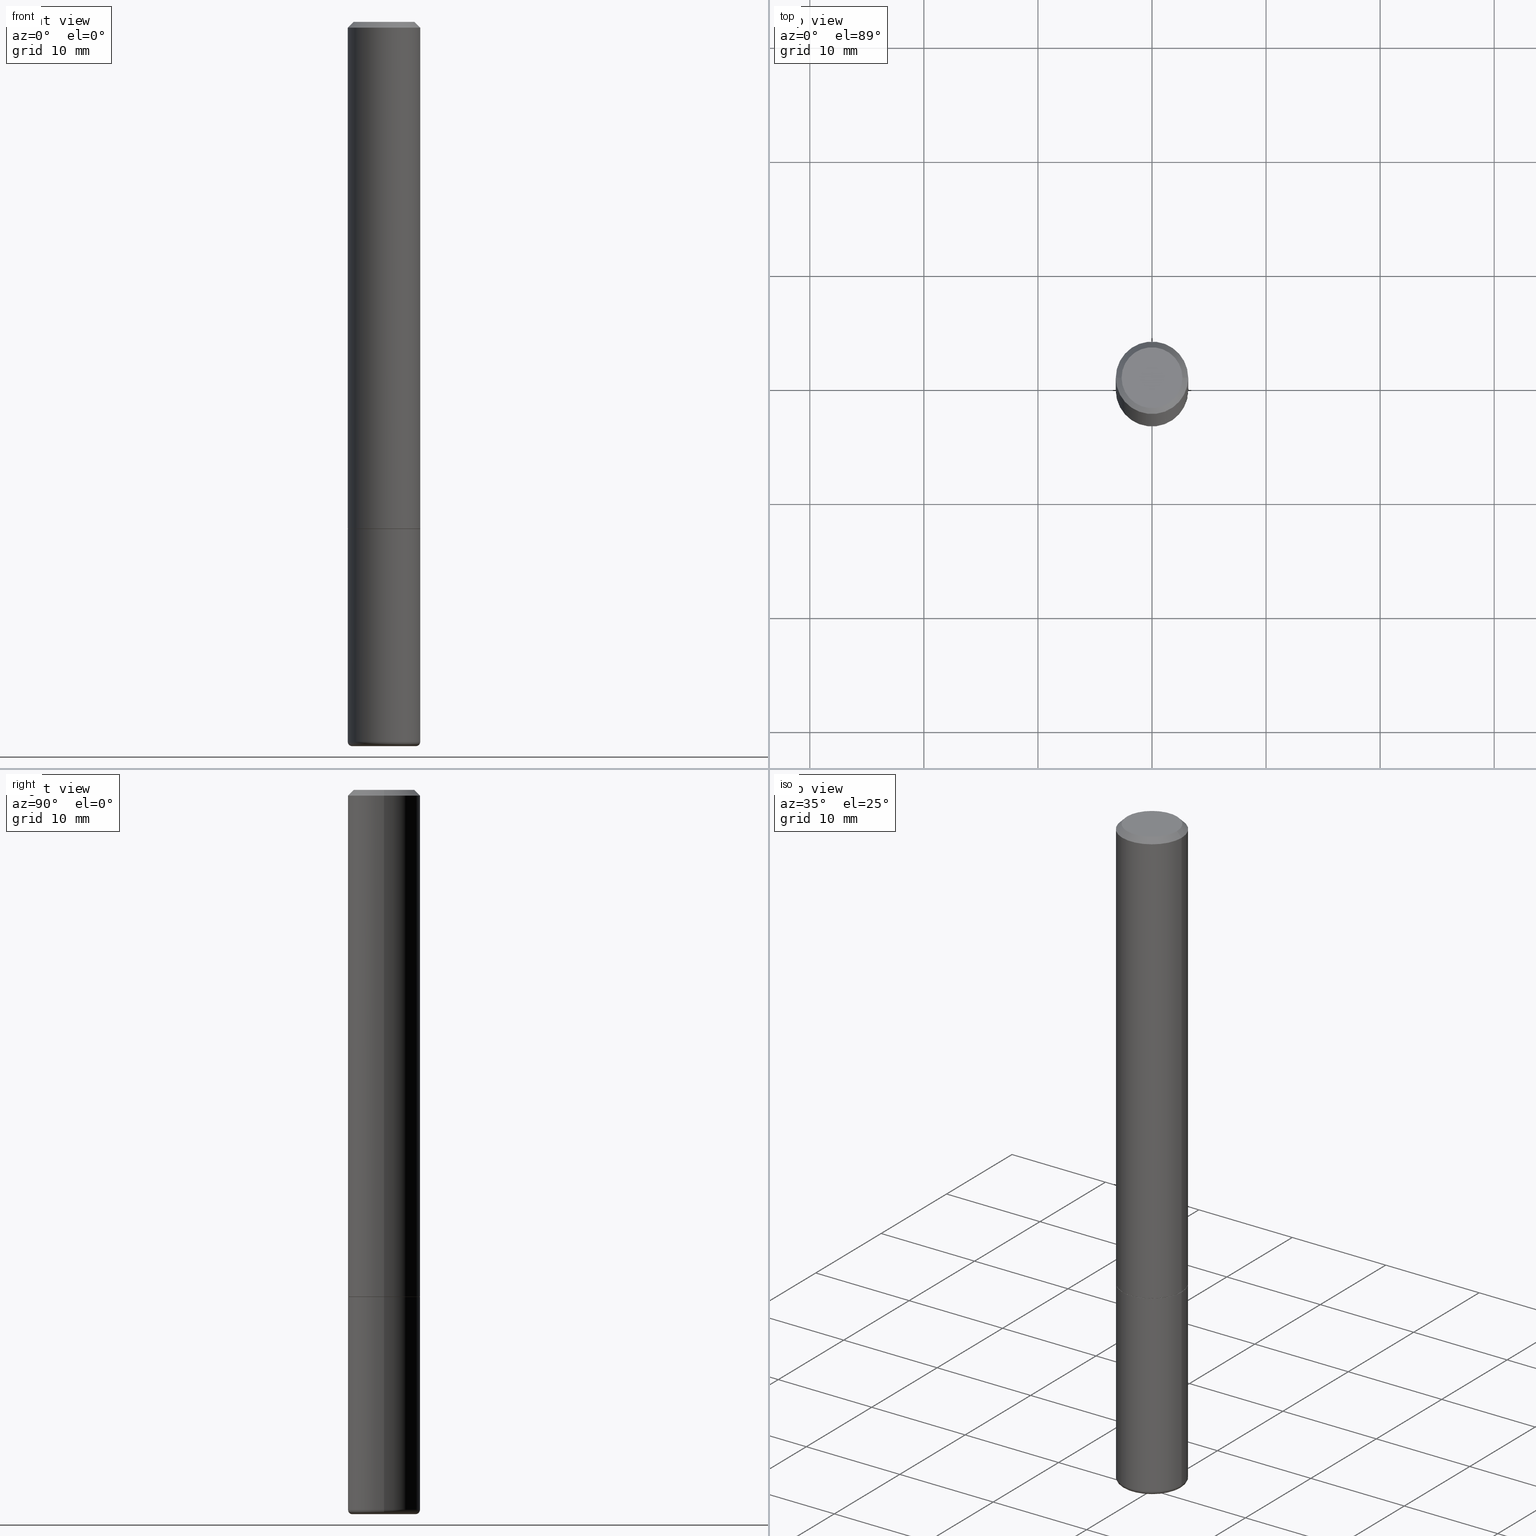
[diagram: canonical four-view strip — front | top / right | iso, engineering-drawing reading convention]
A machine part, canonical four-view strip (front | top / right | iso — engineering-drawing reading convention). The complete STEP part file that produces these views, byte-faithful:
ISO-10303-21;
HEADER;
FILE_DESCRIPTION (( 'STEP AP203' ),
    '1' );
FILE_NAME ('77116.STEP',
    '2024-03-06T16:01:43',
    ( '' ),
    ( '' ),
    'SwSTEP 2.0',
    'SolidWorks 2023',
    '' );
FILE_SCHEMA (( 'CONFIG_CONTROL_DESIGN' ));
ENDSEC;

DATA;
#1 = DIRECTION ( 'NONE',  ( -0.7071067811866863506, 7.493145998870855876E-15, 0.7071067811864086838 ) ) ;
#2 = CC_DESIGN_APPROVAL ( #26, ( #369 ) ) ;
#3 = CALENDAR_DATE ( 2024, 6, 3 ) ;
#4 = CARTESIAN_POINT ( 'NONE',  ( -0.1250000000000000555, -7.788152707325091448E-15, -2.484999999999999876 ) ) ;
#5 = DIRECTION ( 'NONE',  ( 2.445468806185136597E-29, -3.491481338843145583E-15, -1.000000000000000000 ) ) ;
#6 = FACE_OUTER_BOUND ( 'NONE', #62, .T. ) ;
#7 = DIRECTION ( 'NONE',  ( 0.7071067811866863506, -2.468850131083710931E-15, 0.7071067811864086838 ) ) ;
#8 = APPROVAL_DATE_TIME ( #326, #26 ) ;
#9 = DIRECTION ( 'NONE',  ( -2.445468806185136597E-29, 3.491481338843145583E-15, 1.000000000000000000 ) ) ;
#10 = ADVANCED_FACE ( 'NONE', ( #173 ), #311, .F. ) ;
#11 = CARTESIAN_POINT ( 'NONE',  ( -0.1250000000000000000, 8.881784197001252323E-16, -6.148668862818632227E-30 ) ) ;
#12 = AXIS2_PLACEMENT_3D ( 'NONE', #194, #35, #13 ) ;
#13 = DIRECTION ( 'NONE',  ( 1.000000000000000000, -6.982962677686270655E-15, 0.000000000000000000 ) ) ;
#14 = PRODUCT_RELATED_PRODUCT_CATEGORY ( 'detail', '', ( #378 ) ) ;
#15 = LINE ( 'NONE', #407, #120 ) ;
#16 = CARTESIAN_POINT ( 'NONE',  ( 0.1100000000000000006, -9.444457021570706649E-15, -2.484999999999999876 ) ) ;
#17 = ORIENTED_EDGE ( 'NONE', *, *, #334, .F. ) ;
#18 = DIRECTION ( 'NONE',  ( -2.445468806185136597E-29, 3.491481338843145583E-15, 1.000000000000000000 ) ) ;
#19 = CARTESIAN_POINT ( 'NONE',  ( 0.1239999999999999991, -6.975979715008601207E-15, -1.750000000000000000 ) ) ;
#20 = ORIENTED_EDGE ( 'NONE', *, *, #178, .T. ) ;
#21 = VECTOR ( 'NONE', #131, 39.37007874015748143 ) ;
#22 = EDGE_CURVE ( 'NONE', #279, #90, #228, .T. ) ;
#23 = VERTEX_POINT ( 'NONE', #51 ) ;
#24 = ORIENTED_EDGE ( 'NONE', *, *, #52, .F. ) ;
#25 = ORIENTED_EDGE ( 'NONE', *, *, #373, .T. ) ;
#26 = APPROVAL ( #364, 'UNSPECIFIED' ) ;
#27 = TOROIDAL_SURFACE ( 'NONE', #154, 0.1100000000000000006, 0.01500000000000012088 ) ;
#28 = AXIS2_PLACEMENT_3D ( 'NONE', #77, #191, #132 ) ;
#29 = DIRECTION ( 'NONE',  ( 1.000000000000000000, -6.982962677686266711E-15, 4.876176775795935793E-29 ) ) ;
#30 = ORIENTED_EDGE ( 'NONE', *, *, #351, .F. ) ;
#31 = EDGE_CURVE ( 'NONE', #23, #418, #42, .T. ) ;
#32 = SECURITY_CLASSIFICATION_LEVEL ( 'unclassified' ) ;
#33 = CARTESIAN_POINT ( 'NONE',  ( 4.279570410823988484E-29, -6.110092342975504671E-15, -1.750000000000000000 ) ) ;
#34 = CC_DESIGN_PERSON_AND_ORGANIZATION_ASSIGNMENT ( #246, #293, ( #369 ) ) ;
#35 = DIRECTION ( 'NONE',  ( -2.445468806185136597E-29, 3.491481338843145583E-15, 1.000000000000000000 ) ) ;
#36 = CONICAL_SURFACE ( 'NONE', #181, 0.1239999999999999991, 0.7853981633976446775 ) ;
#37 = DIRECTION ( 'NONE',  ( -2.445468806185136597E-29, 3.491481338843145583E-15, 1.000000000000000000 ) ) ;
#38 = PERSON_AND_ORGANIZATION_ROLE ( 'classification_officer' ) ;
#39 = CARTESIAN_POINT ( 'NONE',  ( 0.000000000000000000, 0.000000000000000000, 0.000000000000000000 ) ) ;
#40 = CARTESIAN_POINT ( 'NONE',  ( 1.252621697202263706E-45, -1.788411804456536750E-31, -5.122214988120493535E-17 ) ) ;
#41 = CARTESIAN_POINT ( 'NONE',  ( 4.279570410823989044E-29, -6.110092342975505460E-15, -1.750000000000000222 ) ) ;
#42 = CIRCLE ( 'NONE', #381, 0.1250000000000001943 ) ;
#43 = CIRCLE ( 'NONE', #221, 0.01500000000000012955 ) ;
#44 = DIRECTION ( 'NONE',  ( 1.000000000000000000, -6.982962677686270655E-15, 0.000000000000000000 ) ) ;
#45 = DIRECTION ( 'NONE',  ( -2.445468806185136597E-29, 3.491481338843145583E-15, 1.000000000000000000 ) ) ;
#46 = CC_DESIGN_DATE_AND_TIME_ASSIGNMENT ( #254, #220, ( #417 ) ) ;
#47 = CARTESIAN_POINT ( 'NONE',  ( 0.1250000000000000000, -6.982962677686288010E-15, -1.750000000000000222 ) ) ;
#48 = CIRCLE ( 'NONE', #270, 0.1050000000000000377 ) ;
#49 = APPROVAL_ROLE ( '' ) ;
#50 = FACE_OUTER_BOUND ( 'NONE', #148, .T. ) ;
#51 = CARTESIAN_POINT ( 'NONE',  ( -0.1250000000000001943, -2.200036824506633304E-15, -1.749000000000000110 ) ) ;
#52 = EDGE_CURVE ( 'NONE', #376, #280, #15, .T. ) ;
#53 = ORIENTED_EDGE ( 'NONE', *, *, #306, .F. ) ;
#54 = ORIENTED_EDGE ( 'NONE', *, *, #238, .T. ) ;
#55 = VERTEX_POINT ( 'NONE', #47 ) ;
#56 = CIRCLE ( 'NONE', #81, 0.1249999999999999584 ) ;
#57 = CARTESIAN_POINT ( 'NONE',  ( 0.1250000000000000555, -9.549201461736000019E-15, -2.484999999999999876 ) ) ;
#58 = ORIENTED_EDGE ( 'NONE', *, *, #333, .T. ) ;
#59 = ADVANCED_FACE ( 'NONE', ( #84 ), #27, .T. ) ;
#60 = EDGE_LOOP ( 'NONE', ( #24, #349, #237, #25 ) ) ;
#61 = DIRECTION ( 'NONE',  ( 1.000000000000000000, 0.000000000000000000, 0.000000000000000000 ) ) ;
#62 = EDGE_LOOP ( 'NONE', ( #347, #232 ) ) ;
#63 = AXIS2_PLACEMENT_3D ( 'NONE', #40, #99, #283 ) ;
#64 = EDGE_CURVE ( 'NONE', #239, #276, #69, .T. ) ;
#65 = DATE_TIME_ROLE ( 'classification_date' ) ;
#66 = CARTESIAN_POINT ( 'NONE',  ( 0.000000000000000000, 0.000000000000000000, 0.000000000000000000 ) ) ;
#67 = APPROVAL_DATE_TIME ( #319, #340 ) ;
#68 = DIRECTION ( 'NONE',  ( 1.000000000000000000, -6.982962677686267499E-15, 4.876176775795936353E-29 ) ) ;
#69 = CIRCLE ( 'NONE', #141, 0.1239999999999999991 ) ;
#70 = AXIS2_PLACEMENT_3D ( 'NONE', #233, #236, #61 ) ;
#71 = COORDINATED_UNIVERSAL_TIME_OFFSET ( 5, 0, .BEHIND. ) ;
#72 = CARTESIAN_POINT ( 'NONE',  ( 4.279570410823988484E-29, -6.110092342975504671E-15, -1.750000000000000000 ) ) ;
#73 = DIRECTION ( 'NONE',  ( 7.105427357601001859E-15, 1.000000000000000000, -3.491481338843145583E-15 ) ) ;
#74 = EDGE_CURVE ( 'NONE', #376, #275, #85, .T. ) ;
#75 = ADVANCED_FACE ( 'NONE', ( #258 ), #36, .T. ) ;
#76 = PERSON_AND_ORGANIZATION ( #303, #121 ) ;
#77 = CARTESIAN_POINT ( 'NONE',  ( 7.332110811570581229E-16, 0.1050000000000000377, -3.922166155191328542E-16 ) ) ;
#78 = DIRECTION ( 'NONE',  ( -1.000000000000000000, 7.105427357600994759E-15, 0.000000000000000000 ) ) ;
#79 = DIRECTION ( 'NONE',  ( 1.000000000000000000, -6.982962677686262766E-15, 4.883557194083111780E-29 ) ) ;
#80 = VECTOR ( 'NONE', #1, 39.37007874015748143 ) ;
#81 = AXIS2_PLACEMENT_3D ( 'NONE', #260, #400, #108 ) ;
#82 = EDGE_CURVE ( 'NONE', #239, #23, #356, .T. ) ;
#83 = DIRECTION ( 'NONE',  ( -2.445468806185136597E-29, 3.491481338843145583E-15, 1.000000000000000000 ) ) ;
#84 = FACE_OUTER_BOUND ( 'NONE', #415, .T. ) ;
#85 = CIRCLE ( 'NONE', #63, 0.1050000000000000377 ) ;
#86 = LOCAL_TIME ( 11, 1, 43.00000000000000000, #396 ) ;
#87 = EDGE_CURVE ( 'NONE', #377, #210, #134, .T. ) ;
#88 = CC_DESIGN_PERSON_AND_ORGANIZATION_ASSIGNMENT ( #268, #180, ( #417 ) ) ;
#89 = ORIENTED_EDGE ( 'NONE', *, *, #259, .T. ) ;
#90 = VERTEX_POINT ( 'NONE', #4 ) ;
#91 = AXIS2_PLACEMENT_3D ( 'NONE', #371, #336, #269 ) ;
#92 = ORIENTED_EDGE ( 'NONE', *, *, #163, .F. ) ;
#93 = EDGE_LOOP ( 'NONE', ( #331, #147, #384, #30 ) ) ;
#94 = DIRECTION ( 'NONE',  ( -1.000000000000000000, 6.982962677686265922E-15, -4.876176775795935793E-29 ) ) ;
#95 = ORIENTED_EDGE ( 'NONE', *, *, #139, .T. ) ;
#96 = LOCAL_TIME ( 11, 1, 43.00000000000000000, #106 ) ;
#97 = DIRECTION ( 'NONE',  ( -1.000000000000000000, 6.982962677686265922E-15, -4.876176775795935793E-29 ) ) ;
#98 = MECHANICAL_CONTEXT ( 'NONE', #253, 'mechanical' ) ;
#99 = DIRECTION ( 'NONE',  ( -2.445468806185136597E-29, 3.491481338843145583E-15, 1.000000000000000000 ) ) ;
#100 = CARTESIAN_POINT ( 'NONE',  ( 0.1239999999999999991, -6.975979715008601207E-15, -1.750000000000000000 ) ) ;
#101 = CYLINDRICAL_SURFACE ( 'NONE', #374, 0.1250000000000000000 ) ;
#102 =( NAMED_UNIT ( * ) SI_UNIT ( $, .STERADIAN. ) SOLID_ANGLE_UNIT ( ) );
#103 = AXIS2_PLACEMENT_3D ( 'NONE', #72, #248, #359 ) ;
#104 = DIRECTION ( 'NONE',  ( -6.982962677686266711E-15, -1.000000000000000000, 3.491481338843145583E-15 ) ) ;
#105 = PERSON_AND_ORGANIZATION ( #303, #121 ) ;
#106 = COORDINATED_UNIVERSAL_TIME_OFFSET ( 5, 0, .BEHIND. ) ;
#107 = FACE_OUTER_BOUND ( 'NONE', #353, .T. ) ;
#108 = DIRECTION ( 'NONE',  ( 1.000000000000000000, -6.982962677686267499E-15, 0.000000000000000000 ) ) ;
#109 = CARTESIAN_POINT ( 'NONE',  ( 6.076989983370064174E-29, -8.676331127025216680E-15, -2.484999999999999876 ) ) ;
#110 = FACE_OUTER_BOUND ( 'NONE', #313, .T. ) ;
#111 = VECTOR ( 'NONE', #190, 39.37007874015748143 ) ;
#112 = DIRECTION ( 'NONE',  ( 1.000000000000000000, -6.982962677686267499E-15, 0.000000000000000000 ) ) ;
#113 = APPLICATION_PROTOCOL_DEFINITION ( 'international standard', 'config_control_design', 1994, #253 ) ;
#114 = PERSON_AND_ORGANIZATION ( #303, #121 ) ;
#115 = ORIENTED_EDGE ( 'NONE', *, *, #31, .T. ) ;
#116 = ORIENTED_EDGE ( 'NONE', *, *, #406, .T. ) ;
#117 = VECTOR ( 'NONE', #7, 39.37007874015748143 ) ;
#118 = ORIENTED_EDGE ( 'NONE', *, *, #386, .F. ) ;
#119 = CARTESIAN_POINT ( 'NONE',  ( 0.1250000000000001943, -6.979471196347446580E-15, -1.749000000000000110 ) ) ;
#120 = VECTOR ( 'NONE', #199, 39.37007874015748143 ) ;
#121 = ORGANIZATION ( 'UNSPECIFIED', 'UNSPECIFIED', '' ) ;
#122 = DIRECTION ( 'NONE',  ( 2.438088387897960049E-29, -3.491481338843145188E-15, -1.000000000000000000 ) ) ;
#123 = AXIS2_PLACEMENT_3D ( 'NONE', #389, #5, #370 ) ;
#124 = DIRECTION ( 'NONE',  ( 1.000000000000000000, -6.982962677686262766E-15, 0.000000000000000000 ) ) ;
#125 = LINE ( 'NONE', #252, #257 ) ;
#126 = CALENDAR_DATE ( 2024, 6, 3 ) ;
#127 = DIRECTION ( 'NONE',  ( 1.000000000000000000, -6.982962677686266711E-15, 4.876176775795935793E-29 ) ) ;
#128 = DIRECTION ( 'NONE',  ( 1.000000000000000000, -6.982962677686267499E-15, 4.874400871621236533E-29 ) ) ;
#129 = AXIS2_PLACEMENT_3D ( 'NONE', #66, #320, #68 ) ;
#130 = VECTOR ( 'NONE', #227, 39.37007874015748143 ) ;
#131 = DIRECTION ( 'NONE',  ( -2.445468806185136877E-29, 3.491481338843145188E-15, 1.000000000000000000 ) ) ;
#132 = DIRECTION ( 'NONE',  ( -1.000000000000000000, 6.982962677686265922E-15, -4.876176775795935793E-29 ) ) ;
#133 = ADVANCED_FACE ( 'NONE', ( #110 ), #101, .T. ) ;
#134 = CIRCLE ( 'NONE', #263, 0.1100000000000000006 ) ;
#135 = DIRECTION ( 'NONE',  ( 1.000000000000000000, -6.982962677686267499E-15, 0.000000000000000000 ) ) ;
#136 = AXIS2_PLACEMENT_3D ( 'NONE', #231, #277, #29 ) ;
#137 = ORIENTED_EDGE ( 'NONE', *, *, #333, .F. ) ;
#138 = APPROVAL_DATE_TIME ( #267, #182 ) ;
#139 = EDGE_CURVE ( 'NONE', #275, #376, #48, .T. ) ;
#140 = CARTESIAN_POINT ( 'NONE',  ( 4.277124942017804562E-29, -6.106600861636661664E-15, -1.749000000000000110 ) ) ;
#141 = AXIS2_PLACEMENT_3D ( 'NONE', #33, #37, #392 ) ;
#142 = ORIENTED_EDGE ( 'NONE', *, *, #339, .F. ) ;
#143 = APPROVAL_PERSON_ORGANIZATION ( #114, #182, #49 ) ;
#144 = ORIENTED_EDGE ( 'NONE', *, *, #281, .F. ) ;
#145 = ORIENTED_EDGE ( 'NONE', *, *, #306, .T. ) ;
#146 = ADVANCED_BREP_SHAPE_REPRESENTATION ( '77116', ( #416, #264, #70 ), #297 ) ;
#147 = ORIENTED_EDGE ( 'NONE', *, *, #52, .T. ) ;
#148 = EDGE_LOOP ( 'NONE', ( #214, #272, #54, #172 ) ) ;
#149 = AXIS2_PLACEMENT_3D ( 'NONE', #171, #169, #201 ) ;
#150 = ORIENTED_EDGE ( 'NONE', *, *, #163, .T. ) ;
#151 = ADVANCED_FACE ( 'NONE', ( #6 ), #162, .T. ) ;
#152 = COORDINATED_UNIVERSAL_TIME_OFFSET ( 5, 0, .BEHIND. ) ;
#153 = CARTESIAN_POINT ( 'NONE',  ( -0.1239999999999999991, -5.229019350632980447E-15, -1.750000000000000000 ) ) ;
#154 = AXIS2_PLACEMENT_3D ( 'NONE', #185, #9, #79 ) ;
#155 = FACE_OUTER_BOUND ( 'NONE', #372, .T. ) ;
#156 = DIRECTION ( 'NONE',  ( 2.445468806185136597E-29, -3.491481338843145583E-15, -1.000000000000000000 ) ) ;
#157 = UNCERTAINTY_MEASURE_WITH_UNIT (LENGTH_MEASURE( 1.000000000000000082E-05 ), #292, 'distance_accuracy_value', 'NONE');
#158 = LINE ( 'NONE', #251, #360 ) ;
#159 = DIRECTION ( 'NONE',  ( 1.000000000000000000, -6.982962677686262766E-15, 4.883557194083111780E-29 ) ) ;
#160 = DIRECTION ( 'NONE',  ( -2.445468806185136597E-29, 3.491481338843145583E-15, 1.000000000000000000 ) ) ;
#161 = DIRECTION ( 'NONE',  ( -2.445468806185136597E-29, 3.491481338843145583E-15, 1.000000000000000000 ) ) ;
#162 = PLANE ( 'NONE',  #245 ) ;
#163 = EDGE_CURVE ( 'NONE', #276, #239, #302, .T. ) ;
#164 = LOCAL_TIME ( 11, 1, 43.00000000000000000, #71 ) ;
#165 = DIRECTION ( 'NONE',  ( -2.445468806185136597E-29, 3.491481338843145583E-15, 1.000000000000000000 ) ) ;
#166 = FACE_OUTER_BOUND ( 'NONE', #60, .T. ) ;
#167 = CARTESIAN_POINT ( 'NONE',  ( 4.890937612370288923E-31, -6.982962677686312563E-17, -0.02000000000000006287 ) ) ;
#168 = FACE_OUTER_BOUND ( 'NONE', #183, .T. ) ;
#169 = DIRECTION ( 'NONE',  ( -2.445468806185136597E-29, 3.491481338843145583E-15, 1.000000000000000000 ) ) ;
#170 = AXIS2_PLACEMENT_3D ( 'NONE', #167, #83, #135 ) ;
#171 = CARTESIAN_POINT ( 'NONE',  ( 6.076989983370064174E-29, -8.676331127025216680E-15, -2.484999999999999876 ) ) ;
#172 = ORIENTED_EDGE ( 'NONE', *, *, #250, .F. ) ;
#173 = FACE_OUTER_BOUND ( 'NONE', #388, .T. ) ;
#174 = ADVANCED_FACE ( 'NONE', ( #362 ), #216, .T. ) ;
#175 = ORIENTED_EDGE ( 'NONE', *, *, #64, .T. ) ;
#176 = ORIENTED_EDGE ( 'NONE', *, *, #386, .T. ) ;
#177 = LINE ( 'NONE', #100, #117 ) ;
#178 = EDGE_CURVE ( 'NONE', #210, #377, #256, .T. ) ;
#179 = EDGE_LOOP ( 'NONE', ( #89, #341, #17, #118 ) ) ;
#180 = PERSON_AND_ORGANIZATION_ROLE ( 'creator' ) ;
#181 = AXIS2_PLACEMENT_3D ( 'NONE', #255, #328, #401 ) ;
#182 = APPROVAL ( #314, 'UNSPECIFIED' ) ;
#183 = EDGE_LOOP ( 'NONE', ( #380, #58, #413, #142 ) ) ;
#184 = APPROVAL_STATUS ( 'not_yet_approved' ) ;
#185 = CARTESIAN_POINT ( 'NONE',  ( 6.076989983370064174E-29, -8.676331127025216680E-15, -2.484999999999999876 ) ) ;
#186 = CIRCLE ( 'NONE', #170, 0.1249999999999999584 ) ;
#187 = CARTESIAN_POINT ( 'NONE',  ( -0.1100000000000000006, -7.867629522548422746E-15, -2.500000000000000000 ) ) ;
#188 = CALENDAR_DATE ( 2024, 6, 3 ) ;
#189 = DIRECTION ( 'NONE',  ( -2.445468806185136597E-29, 3.491481338843145583E-15, 1.000000000000000000 ) ) ;
#190 = DIRECTION ( 'NONE',  ( -0.7071067811865459074, 2.468850131082240100E-15, -0.7071067811865491270 ) ) ;
#191 = DIRECTION ( 'NONE',  ( 2.438088387897960049E-29, -3.491481338843145188E-15, -1.000000000000000000 ) ) ;
#192 = DIMENSIONAL_EXPONENTS ( 1.000000000000000000, 0.000000000000000000, 0.000000000000000000, 0.000000000000000000, 0.000000000000000000, 0.000000000000000000, 0.000000000000000000 ) ;
#193 = DIRECTION ( 'NONE',  ( 1.000000000000000000, -6.982962677686265922E-15, 4.876176775795935793E-29 ) ) ;
#194 = CARTESIAN_POINT ( 'NONE',  ( 6.113672015462842613E-29, -8.728703347107864943E-15, -2.500000000000000000 ) ) ;
#195 = SECURITY_CLASSIFICATION ( '', '', #32 ) ;
#196 = ORIENTED_EDGE ( 'NONE', *, *, #238, .F. ) ;
#197 = CARTESIAN_POINT ( 'NONE',  ( 4.890937612370288923E-31, -6.982962677686312563E-17, -0.02000000000000006287 ) ) ;
#198 = CARTESIAN_POINT ( 'NONE',  ( 4.277124942017804562E-29, -6.106600861636661664E-15, -1.749000000000000110 ) ) ;
#199 = DIRECTION ( 'NONE',  ( 0.7071067811865459074, -7.319954787623249734E-15, -0.7071067811865491270 ) ) ;
#200 = CLOSED_SHELL ( 'NONE', ( #133, #346, #286, #285, #59, #151 ) ) ;
#201 = DIRECTION ( 'NONE',  ( 1.000000000000000000, -6.982962677686270655E-15, 0.000000000000000000 ) ) ;
#202 = CIRCLE ( 'NONE', #322, 0.1250000000000001943 ) ;
#203 = ADVANCED_FACE ( 'NONE', ( #155 ), #241, .T. ) ;
#204 = DIRECTION ( 'NONE',  ( -2.445468806185136597E-29, 3.491481338843145583E-15, 1.000000000000000000 ) ) ;
#205 = ORIENTED_EDGE ( 'NONE', *, *, #82, .F. ) ;
#206 = EDGE_CURVE ( 'NONE', #23, #273, #158, .T. ) ;
#207 = CARTESIAN_POINT ( 'NONE',  ( -0.1050000000000000377, 7.681258945454890818E-16, -5.122214988121018004E-17 ) ) ;
#208 = CIRCLE ( 'NONE', #397, 0.01500000000000012955 ) ;
#209 = ORIENTED_EDGE ( 'NONE', *, *, #22, .T. ) ;
#210 = VERTEX_POINT ( 'NONE', #187 ) ;
#211 = APPLICATION_PROTOCOL_DEFINITION ( 'international standard', 'config_control_design', 1994, #301 ) ;
#212 = DIRECTION ( 'NONE',  ( -1.000000000000000000, 6.982962677686267499E-15, 0.000000000000000000 ) ) ;
#213 = FACE_OUTER_BOUND ( 'NONE', #411, .T. ) ;
#214 = ORIENTED_EDGE ( 'NONE', *, *, #354, .F. ) ;
#215 = CIRCLE ( 'NONE', #149, 0.1250000000000000000 ) ;
#216 = CYLINDRICAL_SURFACE ( 'NONE', #129, 0.1250000000000000555 ) ;
#217 = ADVANCED_FACE ( 'NONE', ( #226 ), #399, .T. ) ;
#218 = CARTESIAN_POINT ( 'NONE',  ( 6.113672015462842613E-29, -8.728703347107864943E-15, -2.500000000000000000 ) ) ;
#219 =( LENGTH_UNIT ( ) NAMED_UNIT ( * ) SI_UNIT ( $, .METRE. ) );
#220 = DATE_TIME_ROLE ( 'creation_date' ) ;
#221 = AXIS2_PLACEMENT_3D ( 'NONE', #16, #104, #335 ) ;
#222 = DIRECTION ( 'NONE',  ( -2.445468806185136597E-29, 3.491481338843145583E-15, 1.000000000000000000 ) ) ;
#223 = APPROVAL_ROLE ( '' ) ;
#224 = DIRECTION ( 'NONE',  ( 1.000000000000000000, -6.982962677686270655E-15, 0.000000000000000000 ) ) ;
#225 = CARTESIAN_POINT ( 'NONE',  ( 0.1050000000000000377, -8.238720831321576644E-16, -5.122214988119949344E-17 ) ) ;
#226 = FACE_OUTER_BOUND ( 'NONE', #244, .T. ) ;
#227 = DIRECTION ( 'NONE',  ( -2.445468806185136877E-29, 3.491481338843145188E-15, 1.000000000000000000 ) ) ;
#228 = CIRCLE ( 'NONE', #240, 0.1250000000000000000 ) ;
#229 = CONICAL_SURFACE ( 'NONE', #123, 0.1249999999999999584, 0.7853981633974460586 ) ;
#230 = DIRECTION ( 'NONE',  ( -2.438088387897960049E-29, 3.491481338843145188E-15, 1.000000000000000000 ) ) ;
#231 = CARTESIAN_POINT ( 'NONE',  ( 0.000000000000000000, 0.000000000000000000, 0.000000000000000000 ) ) ;
#232 = ORIENTED_EDGE ( 'NONE', *, *, #178, .F. ) ;
#233 = CARTESIAN_POINT ( 'NONE',  ( 0.000000000000000000, 0.000000000000000000, 0.000000000000000000 ) ) ;
#234 = ADVANCED_FACE ( 'NONE', ( #107 ), #366, .F. ) ;
#235 = COORDINATED_UNIVERSAL_TIME_OFFSET ( 5, 0, .BEHIND. ) ;
#236 = DIRECTION ( 'NONE',  ( 0.000000000000000000, 0.000000000000000000, 1.000000000000000000 ) ) ;
#237 = ORIENTED_EDGE ( 'NONE', *, *, #351, .T. ) ;
#238 = EDGE_CURVE ( 'NONE', #279, #55, #261, .T. ) ;
#239 = VERTEX_POINT ( 'NONE', #332 ) ;
#240 = AXIS2_PLACEMENT_3D ( 'NONE', #109, #18, #44 ) ;
#241 = CONICAL_SURFACE ( 'NONE', #247, 0.1239999999999999991, 0.7853981633976446775 ) ;
#242 = ORIENTED_EDGE ( 'NONE', *, *, #74, .T. ) ;
#243 = ORIENTED_EDGE ( 'NONE', *, *, #250, .T. ) ;
#244 = EDGE_LOOP ( 'NONE', ( #350, #115, #176, #315 ) ) ;
#245 = AXIS2_PLACEMENT_3D ( 'NONE', #218, #122, #97 ) ;
#246 = PERSON_AND_ORGANIZATION ( #303, #121 ) ;
#247 = AXIS2_PLACEMENT_3D ( 'NONE', #289, #160, #124 ) ;
#248 = DIRECTION ( 'NONE',  ( -2.445468806185136597E-29, 3.491481338843145583E-15, 1.000000000000000000 ) ) ;
#249 = DIRECTION ( 'NONE',  ( 2.438088387897960049E-29, -3.491481338843145188E-15, -1.000000000000000000 ) ) ;
#250 = EDGE_CURVE ( 'NONE', #387, #55, #337, .T. ) ;
#251 = CARTESIAN_POINT ( 'NONE',  ( -0.1250000000000000555, 8.881784197001256268E-16, -6.148668862818635730E-30 ) ) ;
#252 = CARTESIAN_POINT ( 'NONE',  ( 0.1250000000000000555, -8.728703347107838319E-16, 6.095220969744923244E-30 ) ) ;
#253 = APPLICATION_CONTEXT ( 'configuration controlled 3d designs of mechanical parts and assemblies' ) ;
#254 = DATE_AND_TIME ( #126, #86 ) ;
#255 = CARTESIAN_POINT ( 'NONE',  ( 4.279570410823988484E-29, -6.110092342975504671E-15, -1.750000000000000000 ) ) ;
#256 = CIRCLE ( 'NONE', #12, 0.1100000000000000006 ) ;
#257 = VECTOR ( 'NONE', #325, 39.37007874015748143 ) ;
#258 = FACE_OUTER_BOUND ( 'NONE', #318, .T. ) ;
#259 = EDGE_CURVE ( 'NONE', #418, #23, #202, .T. ) ;
#260 = CARTESIAN_POINT ( 'NONE',  ( 4.890937612370288923E-31, -6.982962677686312563E-17, -0.02000000000000006287 ) ) ;
#261 = LINE ( 'NONE', #262, #130 ) ;
#262 = CARTESIAN_POINT ( 'NONE',  ( 0.1250000000000000000, -8.728703347107833388E-16, 6.095220969744919741E-30 ) ) ;
#263 = AXIS2_PLACEMENT_3D ( 'NONE', #395, #189, #224 ) ;
#264 = MANIFOLD_SOLID_BREP ( 'Body-Move/Copy2[2]', #287 ) ;
#265 = LINE ( 'NONE', #363, #111 ) ;
#266 = ORIENTED_EDGE ( 'NONE', *, *, #354, .T. ) ;
#267 = DATE_AND_TIME ( #342, #307 ) ;
#268 = PERSON_AND_ORGANIZATION ( #303, #121 ) ;
#269 = DIRECTION ( 'NONE',  ( 1.000000000000000000, -6.982962677686262766E-15, 0.000000000000000000 ) ) ;
#270 = AXIS2_PLACEMENT_3D ( 'NONE', #391, #298, #128 ) ;
#271 = APPROVAL_PERSON_ORGANIZATION ( #105, #26, #223 ) ;
#272 = ORIENTED_EDGE ( 'NONE', *, *, #281, .T. ) ;
#273 = VERTEX_POINT ( 'NONE', #343 ) ;
#274 = CARTESIAN_POINT ( 'NONE',  ( 4.279570410823989044E-29, -6.110092342975505460E-15, -1.750000000000000222 ) ) ;
#275 = VERTEX_POINT ( 'NONE', #207 ) ;
#276 = VERTEX_POINT ( 'NONE', #19 ) ;
#277 = DIRECTION ( 'NONE',  ( -2.445468806185136597E-29, 3.491481338843145583E-15, 1.000000000000000000 ) ) ;
#278 = CC_DESIGN_SECURITY_CLASSIFICATION ( #195, ( #369 ) ) ;
#279 = VERTEX_POINT ( 'NONE', #57 ) ;
#280 = VERTEX_POINT ( 'NONE', #412 ) ;
#281 = EDGE_CURVE ( 'NONE', #90, #279, #215, .T. ) ;
#282 = DATE_AND_TIME ( #3, #352 ) ;
#283 = DIRECTION ( 'NONE',  ( 1.000000000000000000, -6.982962677686267499E-15, 4.874400871621236533E-29 ) ) ;
#284 = CARTESIAN_POINT ( 'NONE',  ( 4.279570410823989044E-29, -6.110092342975505460E-15, -1.750000000000000222 ) ) ;
#285 = ADVANCED_FACE ( 'NONE', ( #50 ), #304, .T. ) ;
#286 = ADVANCED_FACE ( 'NONE', ( #213 ), #357, .F. ) ;
#287 = CLOSED_SHELL ( 'NONE', ( #203, #174, #295, #379, #217, #75, #10, #234 ) ) ;
#288 = TOROIDAL_SURFACE ( 'NONE', #403, 0.1100000000000000006, 0.01500000000000012088 ) ;
#289 = CARTESIAN_POINT ( 'NONE',  ( 4.279570410823988484E-29, -6.110092342975504671E-15, -1.750000000000000000 ) ) ;
#290 = SHAPE_DEFINITION_REPRESENTATION ( #308, #146 ) ;
#291 = DIRECTION ( 'NONE',  ( 1.000000000000000000, -6.982962677686267499E-15, 4.876176775795936353E-29 ) ) ;
#292 =( CONVERSION_BASED_UNIT ( 'INCH', #355 ) LENGTH_UNIT ( ) NAMED_UNIT ( #192 ) );
#293 = PERSON_AND_ORGANIZATION_ROLE ( 'creator' ) ;
#294 = DIRECTION ( 'NONE',  ( -2.445468806185136877E-29, 3.491481338843145188E-15, 1.000000000000000000 ) ) ;
#295 = ADVANCED_FACE ( 'NONE', ( #321 ), #229, .T. ) ;
#296 = LINE ( 'NONE', #11, #21 ) ;
#297 =( GEOMETRIC_REPRESENTATION_CONTEXT ( 3 ) GLOBAL_UNCERTAINTY_ASSIGNED_CONTEXT ( ( #157 ) ) GLOBAL_UNIT_ASSIGNED_CONTEXT ( ( #292, #402, #102 ) ) REPRESENTATION_CONTEXT ( 'NONE', 'WORKASPACE' ) );
#298 = DIRECTION ( 'NONE',  ( -2.445468806185136597E-29, 3.491481338843145583E-15, 1.000000000000000000 ) ) ;
#299 = CARTESIAN_POINT ( 'NONE',  ( 0.1100000000000000006, -9.496829241653354912E-15, -2.500000000000000000 ) ) ;
#300 = CC_DESIGN_DATE_AND_TIME_ASSIGNMENT ( #282, #65, ( #195 ) ) ;
#301 = APPLICATION_CONTEXT ( 'configuration controlled 3d designs of mechanical parts and assemblies' ) ;
#302 = CIRCLE ( 'NONE', #103, 0.1239999999999999991 ) ;
#303 = PERSON ( 'UNSPECIFIED', 'UNSPECIFIED', 'UNSPECIFIED', ('UNSPECIFIED'), ('UNSPECIFIED'), ('UNSPECIFIED') ) ;
#304 = CYLINDRICAL_SURFACE ( 'NONE', #136, 0.1250000000000000000 ) ;
#305 = DESIGN_CONTEXT ( 'detailed design', #301, 'design' ) ;
#306 = EDGE_CURVE ( 'NONE', #55, #387, #317, .T. ) ;
#307 = LOCAL_TIME ( 11, 1, 43.00000000000000000, #235 ) ;
#308 = PRODUCT_DEFINITION_SHAPE ( 'NONE', 'NONE',  #417 ) ;
#309 = AXIS2_PLACEMENT_3D ( 'NONE', #197, #156, #212 ) ;
#310 = ORIENTED_EDGE ( 'NONE', *, *, #31, .F. ) ;
#311 = PLANE ( 'NONE',  #316 ) ;
#312 = DIRECTION ( 'NONE',  ( 1.000000000000000000, -6.982962677686267499E-15, 0.000000000000000000 ) ) ;
#313 = EDGE_LOOP ( 'NONE', ( #209, #266, #53, #196 ) ) ;
#314 = APPROVAL_STATUS ( 'not_yet_approved' ) ;
#315 = ORIENTED_EDGE ( 'NONE', *, *, #373, .F. ) ;
#316 = AXIS2_PLACEMENT_3D ( 'NONE', #274, #230, #193 ) ;
#317 = CIRCLE ( 'NONE', #390, 0.1250000000000000000 ) ;
#318 = EDGE_LOOP ( 'NONE', ( #205, #175, #116, #310 ) ) ;
#319 = DATE_AND_TIME ( #365, #96 ) ;
#320 = DIRECTION ( 'NONE',  ( -2.445468806185136597E-29, 3.491481338843145583E-15, 1.000000000000000000 ) ) ;
#321 = FACE_OUTER_BOUND ( 'NONE', #93, .T. ) ;
#322 = AXIS2_PLACEMENT_3D ( 'NONE', #140, #204, #312 ) ;
#323 = APPROVAL_ROLE ( '' ) ;
#324 = CARTESIAN_POINT ( 'NONE',  ( 0.000000000000000000, 0.000000000000000000, 0.000000000000000000 ) ) ;
#325 = DIRECTION ( 'NONE',  ( -2.445468806185136877E-29, 3.491481338843145188E-15, 1.000000000000000000 ) ) ;
#326 = DATE_AND_TIME ( #188, #164 ) ;
#327 = CC_DESIGN_PERSON_AND_ORGANIZATION_ASSIGNMENT ( #76, #358, ( #369 ) ) ;
#328 = DIRECTION ( 'NONE',  ( -2.445468806185136597E-29, 3.491481338843145583E-15, 1.000000000000000000 ) ) ;
#329 = CARTESIAN_POINT ( 'NONE',  ( -0.1100000000000000006, -7.894734117689105781E-15, -2.484999999999999876 ) ) ;
#330 = AXIS2_PLACEMENT_3D ( 'NONE', #324, #367, #291 ) ;
#331 = ORIENTED_EDGE ( 'NONE', *, *, #74, .F. ) ;
#332 = CARTESIAN_POINT ( 'NONE',  ( -0.1239999999999999991, -5.223720896284758045E-15, -1.750000000000000000 ) ) ;
#333 = EDGE_CURVE ( 'NONE', #210, #90, #208, .T. ) ;
#334 = EDGE_CURVE ( 'NONE', #280, #273, #186, .T. ) ;
#335 = DIRECTION ( 'NONE',  ( 1.000000000000000000, -6.982962677686207546E-15, 0.000000000000000000 ) ) ;
#336 = DIRECTION ( 'NONE',  ( -2.445468806185136597E-29, 3.491481338843145583E-15, 1.000000000000000000 ) ) ;
#337 = CIRCLE ( 'NONE', #91, 0.1250000000000000000 ) ;
#338 = PERSON_AND_ORGANIZATION ( #303, #121 ) ;
#339 = EDGE_CURVE ( 'NONE', #377, #279, #43, .T. ) ;
#340 = APPROVAL ( #184, 'UNSPECIFIED' ) ;
#341 = ORIENTED_EDGE ( 'NONE', *, *, #206, .T. ) ;
#342 = CALENDAR_DATE ( 2024, 6, 3 ) ;
#343 = CARTESIAN_POINT ( 'NONE',  ( -0.1249999999999999584, 8.030407079339200406E-16, -0.02000000000000006287 ) ) ;
#344 = ORIENTED_EDGE ( 'NONE', *, *, #339, .T. ) ;
#345 = CC_DESIGN_APPROVAL ( #340, ( #195 ) ) ;
#346 = ADVANCED_FACE ( 'NONE', ( #168 ), #288, .T. ) ;
#347 = ORIENTED_EDGE ( 'NONE', *, *, #87, .F. ) ;
#348 = ORIENTED_EDGE ( 'NONE', *, *, #82, .T. ) ;
#349 = ORIENTED_EDGE ( 'NONE', *, *, #139, .F. ) ;
#350 = ORIENTED_EDGE ( 'NONE', *, *, #206, .F. ) ;
#351 = EDGE_CURVE ( 'NONE', #275, #273, #265, .T. ) ;
#352 = LOCAL_TIME ( 11, 1, 43.00000000000000000, #152 ) ;
#353 = EDGE_LOOP ( 'NONE', ( #95, #242 ) ) ;
#354 = EDGE_CURVE ( 'NONE', #90, #387, #296, .T. ) ;
#355 = LENGTH_MEASURE_WITH_UNIT ( LENGTH_MEASURE( 0.02539999999999999897 ), #219 );
#356 = LINE ( 'NONE', #153, #80 ) ;
#357 = PLANE ( 'NONE',  #382 ) ;
#358 = PERSON_AND_ORGANIZATION_ROLE ( 'design_supplier' ) ;
#359 = DIRECTION ( 'NONE',  ( 1.000000000000000000, -6.982962677686262766E-15, 0.000000000000000000 ) ) ;
#360 = VECTOR ( 'NONE', #294, 39.37007874015748143 ) ;
#361 = PERSON_AND_ORGANIZATION ( #303, #121 ) ;
#362 = FACE_OUTER_BOUND ( 'NONE', #179, .T. ) ;
#363 = CARTESIAN_POINT ( 'NONE',  ( -0.1249999999999999584, 8.030407079339200406E-16, -0.02000000000000006287 ) ) ;
#364 = APPROVAL_STATUS ( 'not_yet_approved' ) ;
#365 = CALENDAR_DATE ( 2024, 6, 3 ) ;
#366 = PLANE ( 'NONE',  #28 ) ;
#367 = DIRECTION ( 'NONE',  ( -2.445468806185136597E-29, 3.491481338843145583E-15, 1.000000000000000000 ) ) ;
#368 = DIRECTION ( 'NONE',  ( 1.000000000000000000, -6.982962677686262766E-15, 0.000000000000000000 ) ) ;
#369 = PRODUCT_DEFINITION_FORMATION_WITH_SPECIFIED_SOURCE ( 'ANY', '', #378, .NOT_KNOWN. ) ;
#370 = DIRECTION ( 'NONE',  ( -1.000000000000000000, 6.982962677686267499E-15, 0.000000000000000000 ) ) ;
#371 = CARTESIAN_POINT ( 'NONE',  ( 4.279570410823989044E-29, -6.110092342975505460E-15, -1.750000000000000222 ) ) ;
#372 = EDGE_LOOP ( 'NONE', ( #150, #348, #405, #385 ) ) ;
#373 = EDGE_CURVE ( 'NONE', #273, #280, #56, .T. ) ;
#374 = AXIS2_PLACEMENT_3D ( 'NONE', #39, #222, #127 ) ;
#375 = CONICAL_SURFACE ( 'NONE', #309, 0.1249999999999999584, 0.7853981633974460586 ) ;
#376 = VERTEX_POINT ( 'NONE', #225 ) ;
#377 = VERTEX_POINT ( 'NONE', #299 ) ;
#378 = PRODUCT ( '77116', '77116', '', ( #98 ) ) ;
#379 = ADVANCED_FACE ( 'NONE', ( #166 ), #375, .T. ) ;
#380 = ORIENTED_EDGE ( 'NONE', *, *, #87, .T. ) ;
#381 = AXIS2_PLACEMENT_3D ( 'NONE', #198, #45, #112 ) ;
#382 = AXIS2_PLACEMENT_3D ( 'NONE', #284, #249, #94 ) ;
#383 = PERSON_AND_ORGANIZATION_ROLE ( 'design_owner' ) ;
#384 = ORIENTED_EDGE ( 'NONE', *, *, #334, .T. ) ;
#385 = ORIENTED_EDGE ( 'NONE', *, *, #406, .F. ) ;
#386 = EDGE_CURVE ( 'NONE', #418, #280, #125, .T. ) ;
#387 = VERTEX_POINT ( 'NONE', #394 ) ;
#388 = EDGE_LOOP ( 'NONE', ( #92, #410 ) ) ;
#389 = CARTESIAN_POINT ( 'NONE',  ( 4.890937612370288923E-31, -6.982962677686312563E-17, -0.02000000000000006287 ) ) ;
#390 = AXIS2_PLACEMENT_3D ( 'NONE', #41, #161, #368 ) ;
#391 = CARTESIAN_POINT ( 'NONE',  ( 1.252621697202263706E-45, -1.788411804456536750E-31, -5.122214988120493535E-17 ) ) ;
#392 = DIRECTION ( 'NONE',  ( 1.000000000000000000, -6.982962677686262766E-15, 0.000000000000000000 ) ) ;
#393 = CC_DESIGN_PERSON_AND_ORGANIZATION_ASSIGNMENT ( #338, #383, ( #378 ) ) ;
#394 = CARTESIAN_POINT ( 'NONE',  ( -0.1250000000000000000, -6.505033315300235838E-15, -1.750000000000000222 ) ) ;
#395 = CARTESIAN_POINT ( 'NONE',  ( 6.113672015462842613E-29, -8.728703347107864943E-15, -2.500000000000000000 ) ) ;
#396 = COORDINATED_UNIVERSAL_TIME_OFFSET ( 5, 0, .BEHIND. ) ;
#397 = AXIS2_PLACEMENT_3D ( 'NONE', #329, #73, #78 ) ;
#398 = PERSON_AND_ORGANIZATION ( #303, #121 ) ;
#399 = CYLINDRICAL_SURFACE ( 'NONE', #330, 0.1250000000000000555 ) ;
#400 = DIRECTION ( 'NONE',  ( -2.445468806185136597E-29, 3.491481338843145583E-15, 1.000000000000000000 ) ) ;
#401 = DIRECTION ( 'NONE',  ( 1.000000000000000000, -6.982962677686262766E-15, 0.000000000000000000 ) ) ;
#402 =( NAMED_UNIT ( * ) PLANE_ANGLE_UNIT ( ) SI_UNIT ( $, .RADIAN. ) );
#403 = AXIS2_PLACEMENT_3D ( 'NONE', #404, #165, #159 ) ;
#404 = CARTESIAN_POINT ( 'NONE',  ( 6.076989983370064174E-29, -8.676331127025216680E-15, -2.484999999999999876 ) ) ;
#405 = ORIENTED_EDGE ( 'NONE', *, *, #259, .F. ) ;
#406 = EDGE_CURVE ( 'NONE', #276, #418, #177, .T. ) ;
#407 = CARTESIAN_POINT ( 'NONE',  ( 0.1249999999999999584, -9.273918764983043491E-16, -0.02000000000000006287 ) ) ;
#408 = APPROVAL_PERSON_ORGANIZATION ( #361, #340, #323 ) ;
#409 = CC_DESIGN_PERSON_AND_ORGANIZATION_ASSIGNMENT ( #398, #38, ( #195 ) ) ;
#410 = ORIENTED_EDGE ( 'NONE', *, *, #64, .F. ) ;
#411 = EDGE_LOOP ( 'NONE', ( #145, #243 ) ) ;
#412 = CARTESIAN_POINT ( 'NONE',  ( 0.1249999999999999584, -9.273918764983043491E-16, -0.02000000000000006287 ) ) ;
#413 = ORIENTED_EDGE ( 'NONE', *, *, #22, .F. ) ;
#414 = CC_DESIGN_APPROVAL ( #182, ( #417 ) ) ;
#415 = EDGE_LOOP ( 'NONE', ( #137, #20, #344, #144 ) ) ;
#416 = MANIFOLD_SOLID_BREP ( 'Body-Move/Copy2[1]', #200 ) ;
#417 = PRODUCT_DEFINITION ( 'UNKNOWN', '', #369, #305 ) ;
#418 = VERTEX_POINT ( 'NONE', #119 ) ;
ENDSEC;
END-ISO-10303-21;
